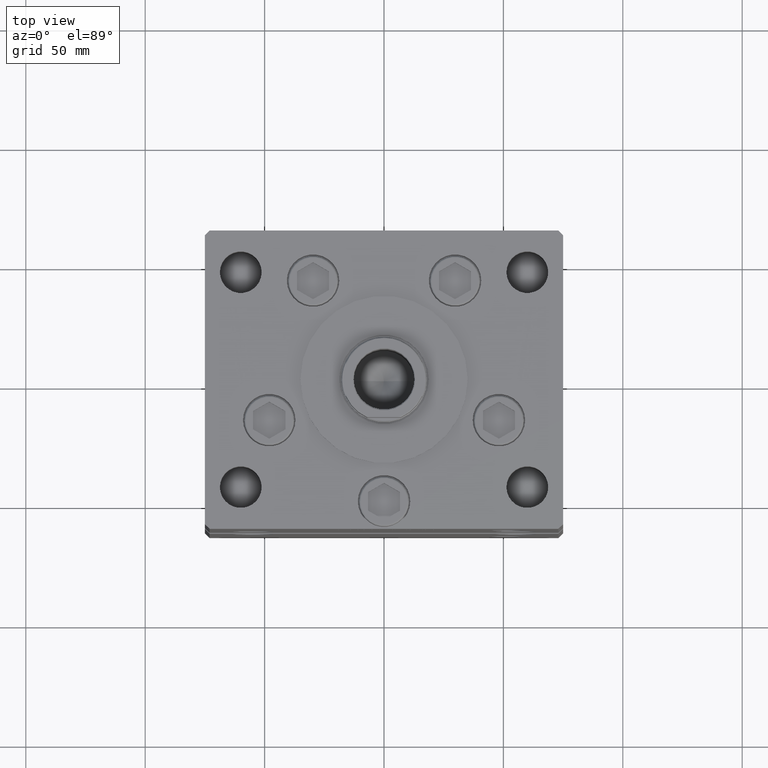
[diagram: clean part render]
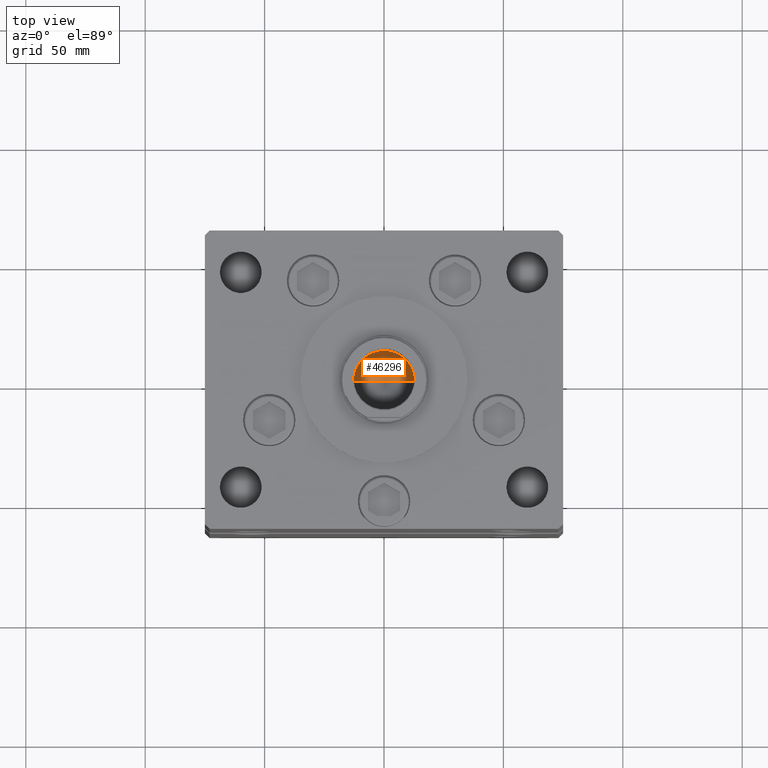
[diagram: same view with one face highlighted and labeled with its STEP entity id]
A machine part, top view. The second image highlights one B-rep face of the part: STEP entity #46296.
In plain terms, the highlighted conical surface has half-angle 59 deg.
Its self-contained STEP definition (entity closure, byte-faithful):
#428 = ORIENTED_EDGE ( 'NONE', *, *, #46454, .T. ) ;
#5155 = CARTESIAN_POINT ( 'NONE',  ( 0.000000000000000000, 0.000000000000000000, 157.5000000000000284 ) ) ;
#5821 = DIRECTION ( 'NONE',  ( 0.8571673007021110013, 0.000000000000000000, 0.5150380749100563760 ) ) ;
#7026 = EDGE_CURVE ( 'NONE', #26009, #26953, #51317, .T. ) ;
#9328 = VERTEX_POINT ( 'NONE', #12096 ) ;
#9706 = DIRECTION ( 'NONE',  ( 1.000000000000000000, 0.000000000000000000, 0.000000000000000000 ) ) ;
#10717 = ORIENTED_EDGE ( 'NONE', *, *, #22050, .T. ) ;
#12096 = CARTESIAN_POINT ( 'NONE',  ( 12.74999999999999112, 0.000000000000000000, 157.5000000000000284 ) ) ;
#13460 = DIRECTION ( 'NONE',  ( 1.000000000000000000, 0.000000000000000000, 0.000000000000000000 ) ) ;
#13675 = FACE_OUTER_BOUND ( 'NONE', #34441, .T. ) ;
#13854 = CARTESIAN_POINT ( 'NONE',  ( 12.74999999999999112, 0.000000000000000000, 157.5000000000000284 ) ) ;
#15584 = VECTOR ( 'NONE', #5821, 1000.000000000000000 ) ;
#16906 = AXIS2_PLACEMENT_3D ( 'NONE', #46353, #42333, #9706 ) ;
#20110 = LINE ( 'NONE', #13854, #15584 ) ;
#22050 = EDGE_CURVE ( 'NONE', #26009, #9328, #20110, .T. ) ;
#22376 = CARTESIAN_POINT ( 'NONE',  ( -12.74999999999999112, 1.561424668912874125E-15, 157.5000000000000284 ) ) ;
#24500 = ORIENTED_EDGE ( 'NONE', *, *, #7026, .F. ) ;
#26009 = VERTEX_POINT ( 'NONE', #36950 ) ;
#26953 = VERTEX_POINT ( 'NONE', #47925 ) ;
#30584 = AXIS2_PLACEMENT_3D ( 'NONE', #5155, #37837, #13460 ) ;
#32193 = DIRECTION ( 'NONE',  ( -0.8571673007021110013, 1.049727191138617093E-16, 0.5150380749100563760 ) ) ;
#34441 = EDGE_LOOP ( 'NONE', ( #24500, #10717, #428 ) ) ;
#36950 = CARTESIAN_POINT ( 'NONE',  ( -1.307202896762960287E-14, 0.000000000000000000, 149.8390271073986071 ) ) ;
#37837 = DIRECTION ( 'NONE',  ( -0.000000000000000000, -0.000000000000000000, 1.000000000000000000 ) ) ;
#38227 = VECTOR ( 'NONE', #32193, 1000.000000000000000 ) ;
#42333 = DIRECTION ( 'NONE',  ( -0.000000000000000000, -0.000000000000000000, 1.000000000000000000 ) ) ;
#46296 = ADVANCED_FACE ( 'NONE', ( #13675 ), #51124, .F. ) ;
#46353 = CARTESIAN_POINT ( 'NONE',  ( 0.000000000000000000, 0.000000000000000000, 157.5000000000000284 ) ) ;
#46454 = EDGE_CURVE ( 'NONE', #9328, #26953, #50257, .T. ) ;
#47925 = CARTESIAN_POINT ( 'NONE',  ( -12.74999999999999112, 1.561424668912874125E-15, 157.5000000000000284 ) ) ;
#50257 = CIRCLE ( 'NONE', #30584, 12.74999999999999112 ) ;
#51124 = CONICAL_SURFACE ( 'NONE', #16906, 12.74999999999999112, 1.029744258676651869 ) ;
#51317 = LINE ( 'NONE', #22376, #38227 ) ;